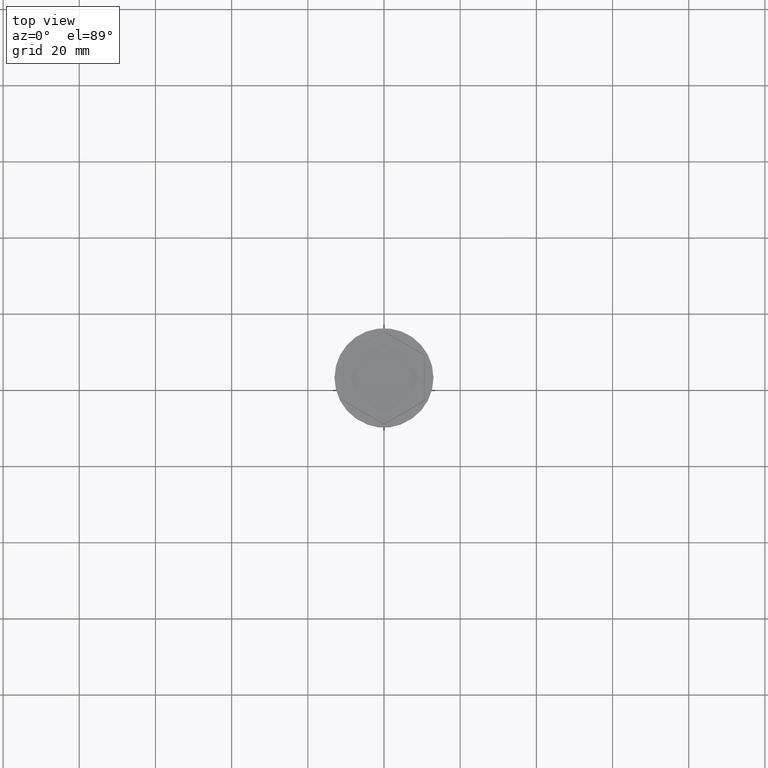
[diagram: clean part render]
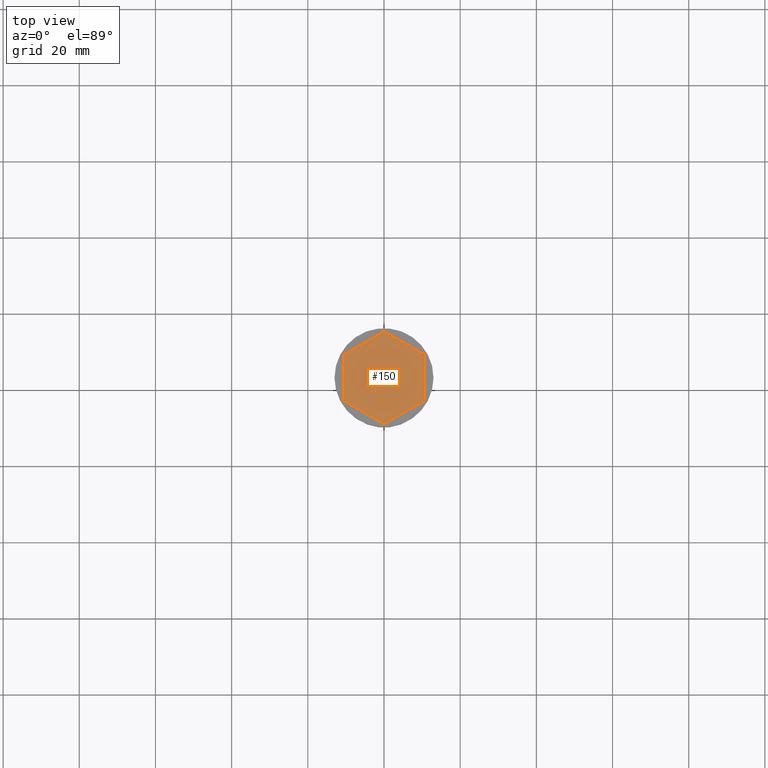
[diagram: same view with one face highlighted and labeled with its STEP entity id]
A machine part, top view. The second image highlights one B-rep face of the part: STEP entity #150.
In plain terms, the highlighted planar face has unit normal (-0, 0, 1).
Its self-contained STEP definition (entity closure, byte-faithful):
#63 = ORIENTED_EDGE ( 'NONE', *, *, #353, .T. ) ;
#105 = CARTESIAN_POINT ( 'NONE',  ( -5.249999999999997335, 9.093266739736602489, -2.000000000000000000 ) ) ;
#112 = LINE ( 'NONE', #246, #389 ) ;
#142 = DIRECTION ( 'NONE',  ( -0.000000000000000000, 0.000000000000000000, 1.000000000000000000 ) ) ;
#144 = VECTOR ( 'NONE', #235, 1000.000000000000000 ) ;
#149 = VECTOR ( 'NONE', #1295, 1000.000000000000114 ) ;
#150 = ADVANCED_FACE ( 'NONE', ( #262 ), #1596, .T. ) ;
#156 = LINE ( 'NONE', #174, #409 ) ;
#174 = CARTESIAN_POINT ( 'NONE',  ( -10.49999999999999822, 0.000000000000000000, -2.000000000000000000 ) ) ;
#204 = VERTEX_POINT ( 'NONE', #885 ) ;
#235 = DIRECTION ( 'NONE',  ( 0.8660254037844385966, 0.5000000000000001110, 0.000000000000000000 ) ) ;
#246 = CARTESIAN_POINT ( 'NONE',  ( 10.49999999999999822, 0.000000000000000000, -2.000000000000000000 ) ) ;
#262 = FACE_OUTER_BOUND ( 'NONE', #890, .T. ) ;
#272 = ORIENTED_EDGE ( 'NONE', *, *, #1385, .T. ) ;
#277 = DIRECTION ( 'NONE',  ( 0.000000000000000000, -1.000000000000000000, 0.000000000000000000 ) ) ;
#286 = ORIENTED_EDGE ( 'NONE', *, *, #862, .T. ) ;
#297 = VERTEX_POINT ( 'NONE', #1100 ) ;
#318 = LINE ( 'NONE', #709, #1331 ) ;
#347 = CARTESIAN_POINT ( 'NONE',  ( -5.249999999999998224, -9.093266739736606041, -2.000000000000000000 ) ) ;
#353 = EDGE_CURVE ( 'NONE', #297, #204, #112, .T. ) ;
#387 = DIRECTION ( 'NONE',  ( 1.000000000000000000, 0.000000000000000000, 0.000000000000000000 ) ) ;
#389 = VECTOR ( 'NONE', #611, 1000.000000000000000 ) ;
#409 = VECTOR ( 'NONE', #277, 1000.000000000000000 ) ;
#437 = CARTESIAN_POINT ( 'NONE',  ( 0.000000000000000000, -12.12435565298214080, -2.000000000000000000 ) ) ;
#457 = CARTESIAN_POINT ( 'NONE',  ( -10.49999999999999822, -6.062177826491072175, -2.000000000000000000 ) ) ;
#493 = VECTOR ( 'NONE', #1237, 999.9999999999998863 ) ;
#611 = DIRECTION ( 'NONE',  ( 0.000000000000000000, 1.000000000000000000, -0.000000000000000000 ) ) ;
#653 = ORIENTED_EDGE ( 'NONE', *, *, #1392, .T. ) ;
#709 = CARTESIAN_POINT ( 'NONE',  ( 5.249999999999996447, 9.093266739736606041, -2.000000000000000000 ) ) ;
#766 = LINE ( 'NONE', #1591, #144 ) ;
#818 = LINE ( 'NONE', #347, #149 ) ;
#861 = LINE ( 'NONE', #105, #493 ) ;
#862 = EDGE_CURVE ( 'NONE', #1410, #297, #766, .T. ) ;
#885 = CARTESIAN_POINT ( 'NONE',  ( 10.49999999999999822, 6.062177826491071286, -2.000000000000000000 ) ) ;
#890 = EDGE_LOOP ( 'NONE', ( #653, #1319, #1256, #272, #286, #63 ) ) ;
#899 = EDGE_CURVE ( 'NONE', #1118, #1072, #156, .T. ) ;
#952 = CARTESIAN_POINT ( 'NONE',  ( 0.000000000000000000, 12.12435565298213724, -2.000000000000000000 ) ) ;
#1072 = VERTEX_POINT ( 'NONE', #457 ) ;
#1100 = CARTESIAN_POINT ( 'NONE',  ( 10.49999999999999822, -6.062177826491069510, -2.000000000000000000 ) ) ;
#1118 = VERTEX_POINT ( 'NONE', #1330 ) ;
#1191 = DIRECTION ( 'NONE',  ( -0.8660254037844387076, 0.4999999999999997224, 0.000000000000000000 ) ) ;
#1237 = DIRECTION ( 'NONE',  ( -0.8660254037844387076, -0.5000000000000001110, 0.000000000000000000 ) ) ;
#1253 = CARTESIAN_POINT ( 'NONE',  ( 0.000000000000000000, 0.000000000000000000, -2.000000000000000000 ) ) ;
#1256 = ORIENTED_EDGE ( 'NONE', *, *, #899, .T. ) ;
#1271 = EDGE_CURVE ( 'NONE', #1371, #1118, #861, .T. ) ;
#1295 = DIRECTION ( 'NONE',  ( 0.8660254037844387076, -0.4999999999999998890, 0.000000000000000000 ) ) ;
#1319 = ORIENTED_EDGE ( 'NONE', *, *, #1271, .T. ) ;
#1330 = CARTESIAN_POINT ( 'NONE',  ( -10.49999999999999822, 6.062177826491066845, -2.000000000000000000 ) ) ;
#1331 = VECTOR ( 'NONE', #1191, 1000.000000000000114 ) ;
#1371 = VERTEX_POINT ( 'NONE', #952 ) ;
#1385 = EDGE_CURVE ( 'NONE', #1072, #1410, #818, .T. ) ;
#1392 = EDGE_CURVE ( 'NONE', #204, #1371, #318, .T. ) ;
#1410 = VERTEX_POINT ( 'NONE', #437 ) ;
#1584 = AXIS2_PLACEMENT_3D ( 'NONE', #1253, #142, #387 ) ;
#1591 = CARTESIAN_POINT ( 'NONE',  ( 5.250000000000000000, -9.093266739736604265, -2.000000000000000000 ) ) ;
#1596 = PLANE ( 'NONE',  #1584 ) ;